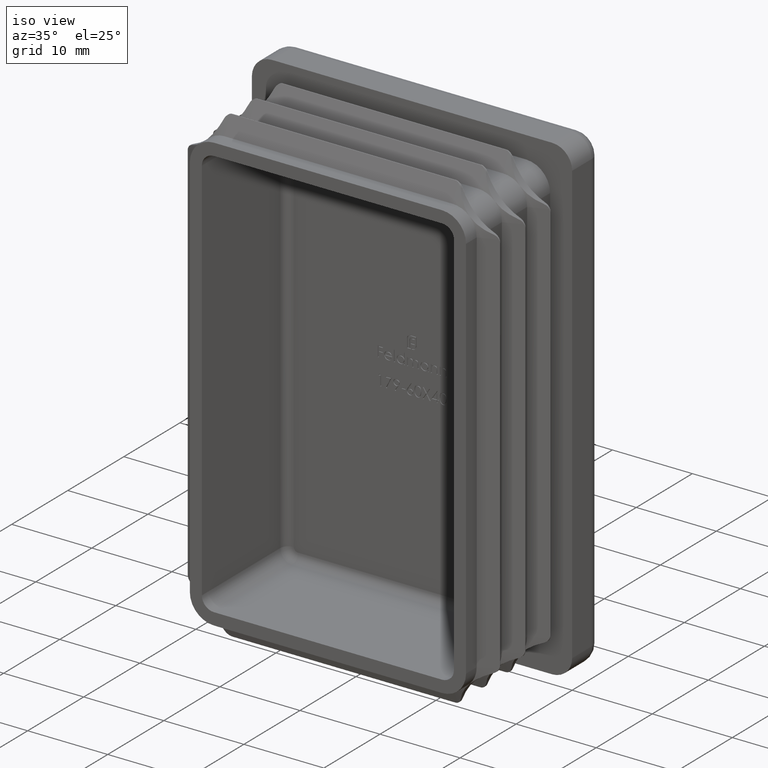
[diagram: clean part render]
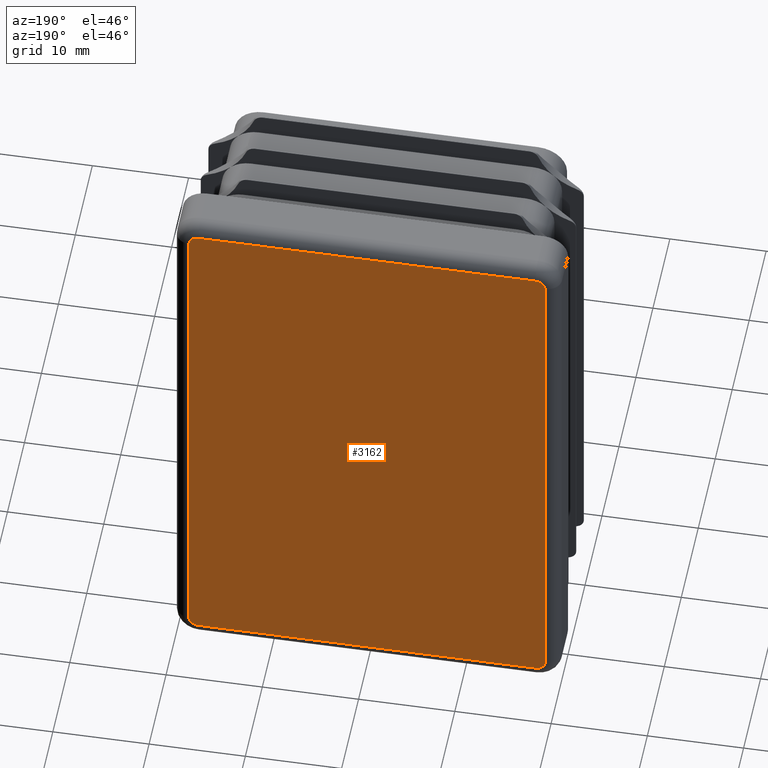
[diagram: tour spotlight — one face highlighted and labeled with its STEP entity id]
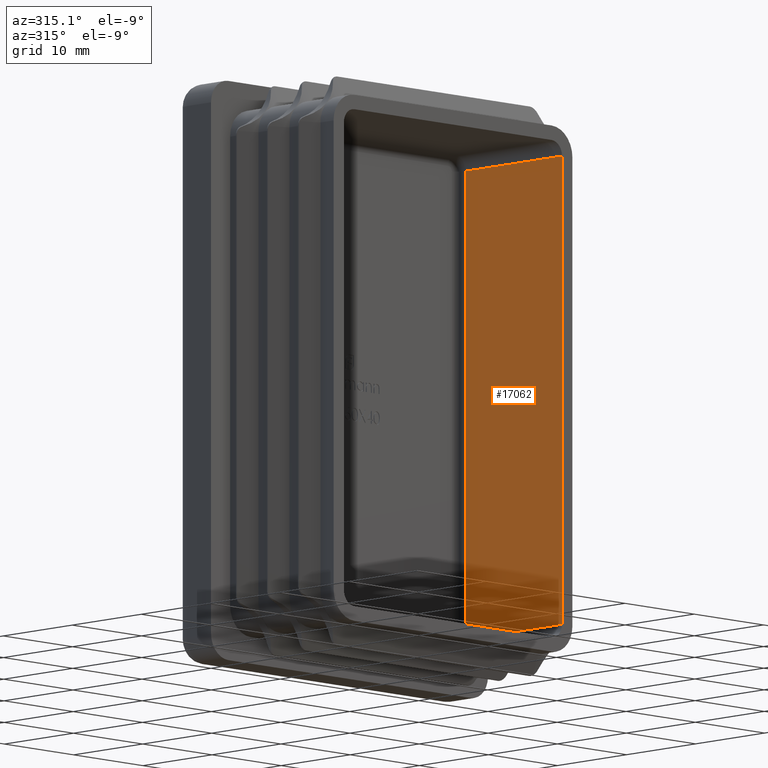
[diagram: tour spotlight — one face highlighted and labeled with its STEP entity id]
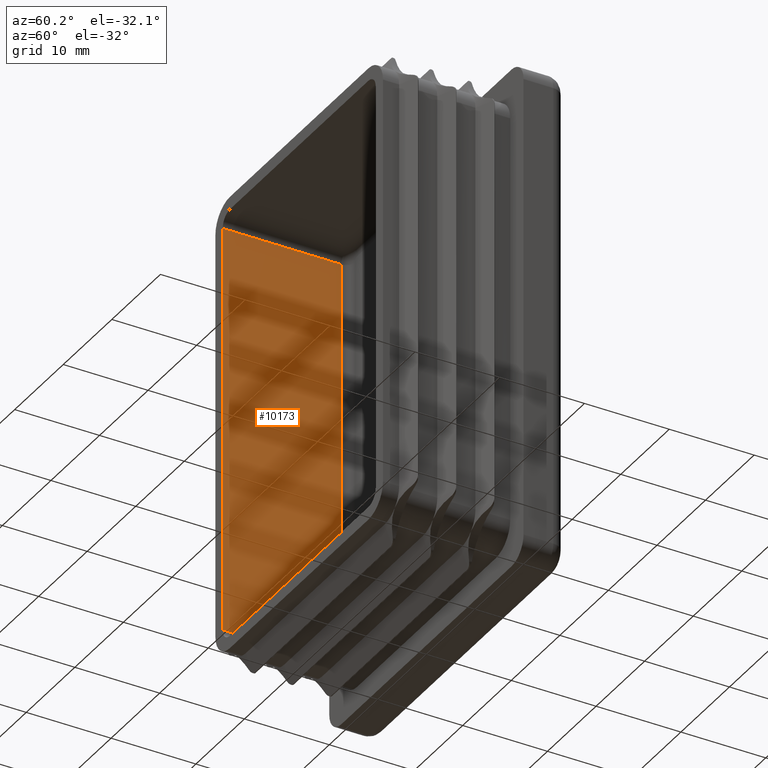
[diagram: tour spotlight — one face highlighted and labeled with its STEP entity id]
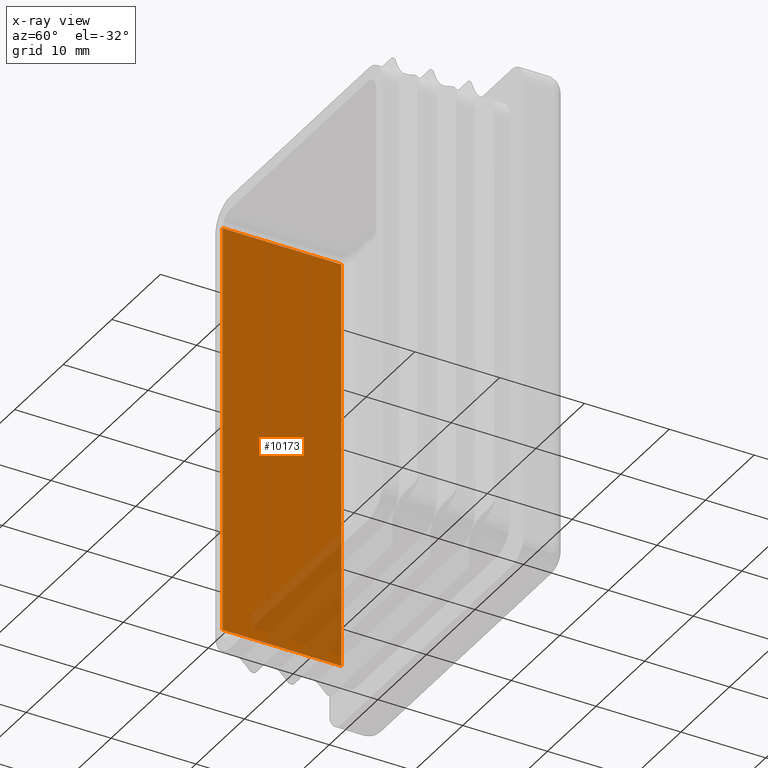
[diagram: x-ray of the same camera — body ghosted, this tour face saturated]
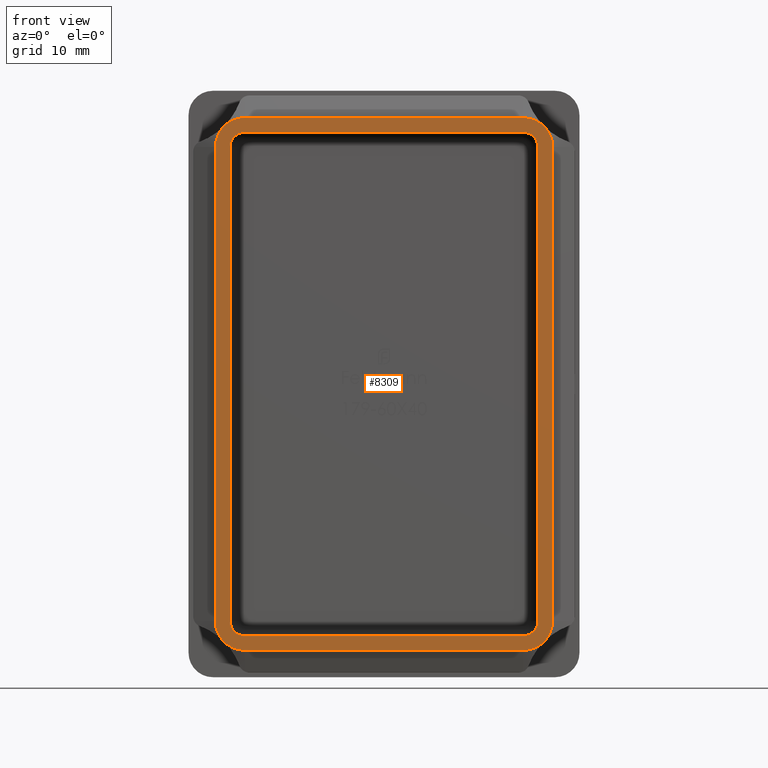
[diagram: tour spotlight — one face highlighted and labeled with its STEP entity id]
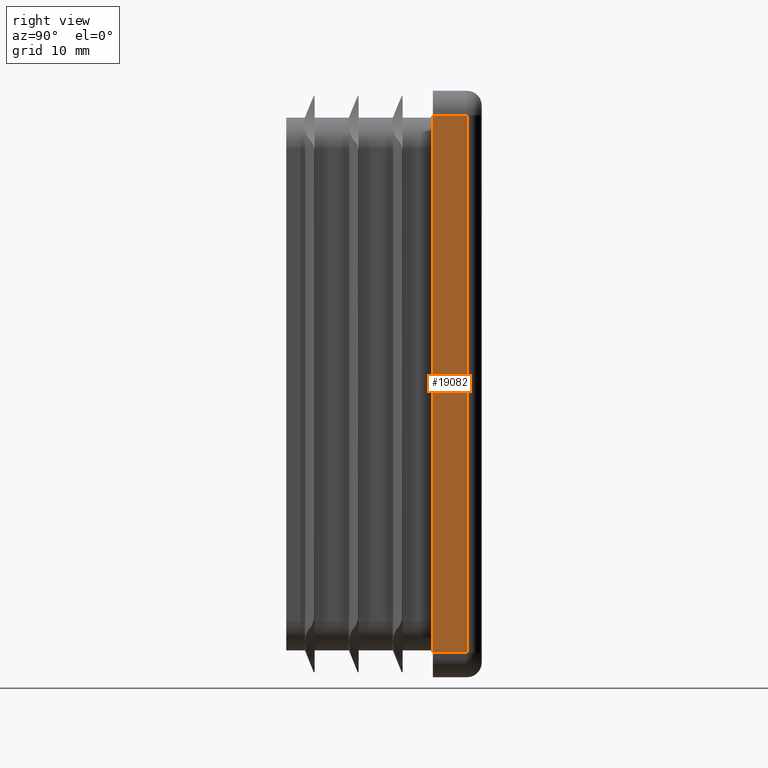
[diagram: tour spotlight — one face highlighted and labeled with its STEP entity id]
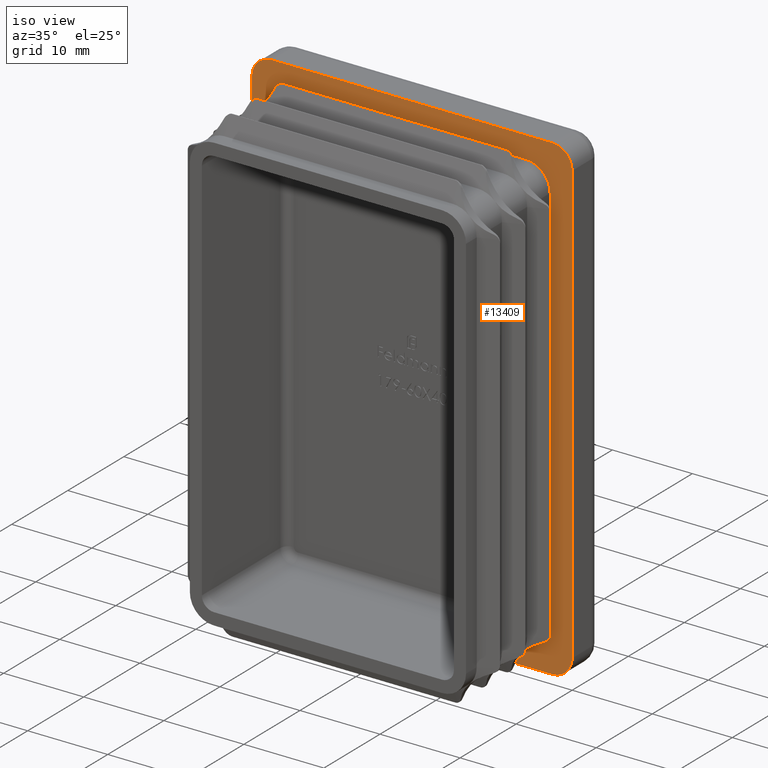
[diagram: tour spotlight — one face highlighted and labeled with its STEP entity id]
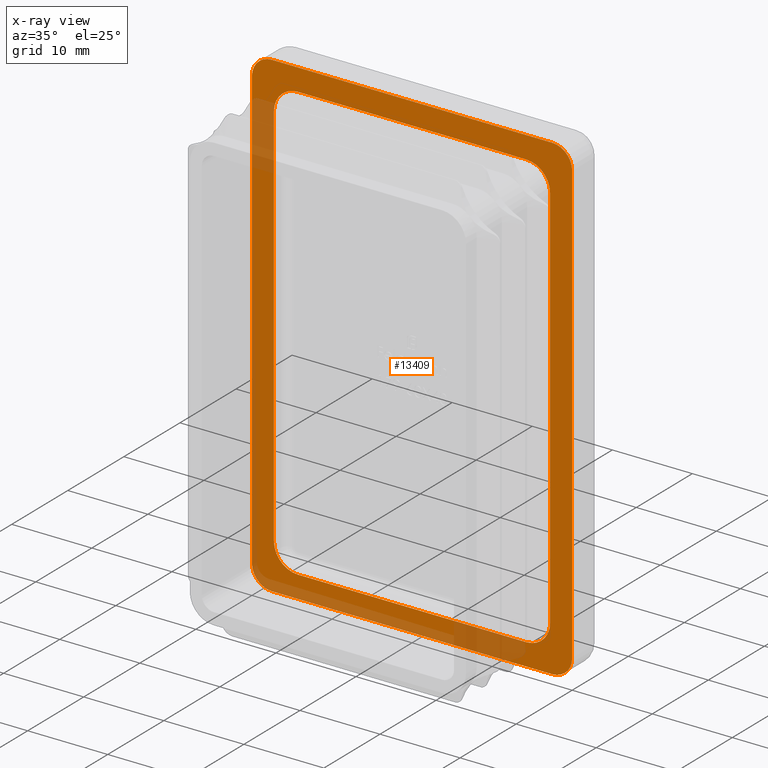
[diagram: x-ray of the same camera — body ghosted, this tour face saturated]
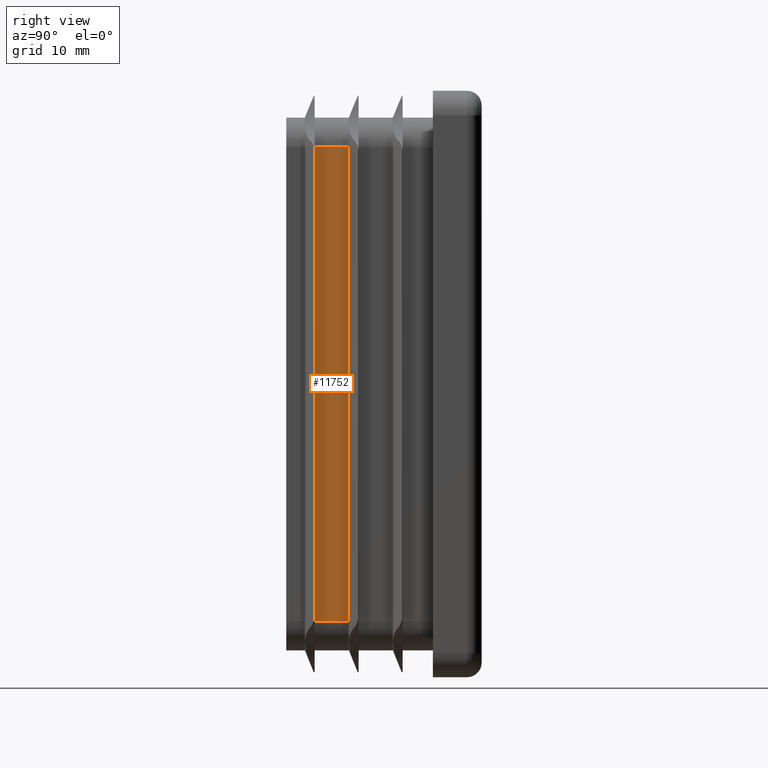
[diagram: tour spotlight — one face highlighted and labeled with its STEP entity id]
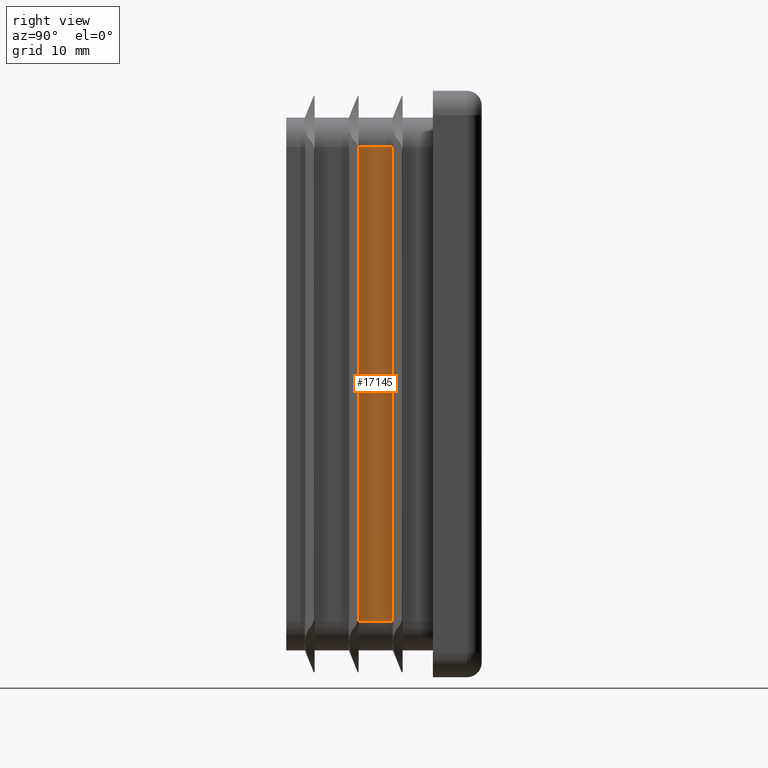
[diagram: tour spotlight — one face highlighted and labeled with its STEP entity id]
A machine part: a face-by-face anatomy tour. The part has 448 B-rep faces; the first image is the clean iso view, then the 8 largest visible faces are spotlighted one at a time (largest first), each with its STEP entity span.

Face 1 — auxiliary view, entity #3162. In plain terms, the highlighted planar face has unit normal (0, 1, 0).
Definition (entity closure, byte-faithful):
#280 = LINE ( 'NONE', #6073, #13514 ) ;
#286 = AXIS2_PLACEMENT_3D ( 'NONE', #1452, #7400, #13500 ) ;
#649 = EDGE_CURVE ( 'NONE', #13620, #8140, #1002, .T. ) ;
#1002 = LINE ( 'NONE', #11594, #13765 ) ;
#1452 = CARTESIAN_POINT ( 'NONE',  ( -17.49999999999999645, 5.000000000000000000, -27.49999999999998579 ) ) ;
#1550 = VERTEX_POINT ( 'NONE', #9179 ) ;
#2117 = DIRECTION ( 'NONE',  ( -1.000000000000000000, 0.000000000000000000, 1.734723475976807587E-16 ) ) ;
#2347 = ORIENTED_EDGE ( 'NONE', *, *, #17256, .T. ) ;
#2517 = AXIS2_PLACEMENT_3D ( 'NONE', #8215, #18630, #12753 ) ;
#2700 = EDGE_CURVE ( 'NONE', #8140, #17505, #17002, .T. ) ;
#3089 = FACE_OUTER_BOUND ( 'NONE', #14506, .T. ) ;
#3106 = CARTESIAN_POINT ( 'NONE',  ( 17.49999999999999645, 5.000000000000000000, -27.49999999999999289 ) ) ;
#3162 = ADVANCED_FACE ( 'NONE', ( #3089 ), #5227, .T. ) ;
#3391 = CIRCLE ( 'NONE', #11415, 1.000000000000000888 ) ;
#3484 = CARTESIAN_POINT ( 'NONE',  ( 18.50000000000000711, 5.000000000000000000, 27.50000000000001066 ) ) ;
#3827 = ORIENTED_EDGE ( 'NONE', *, *, #2700, .T. ) ;
#5227 = PLANE ( 'NONE',  #2517 ) ;
#5593 = ORIENTED_EDGE ( 'NONE', *, *, #8690, .T. ) ;
#5622 = CARTESIAN_POINT ( 'NONE',  ( -17.49999999999999645, 5.000000000000000000, -28.49999999999998224 ) ) ;
#5750 = DIRECTION ( 'NONE',  ( 5.782411586589357392E-17, -0.000000000000000000, 1.000000000000000000 ) ) ;
#6073 = CARTESIAN_POINT ( 'NONE',  ( 18.49999999999999645, 5.000000000000000000, -27.49999999999999289 ) ) ;
#6378 = VERTEX_POINT ( 'NONE', #13609 ) ;
#6691 = CARTESIAN_POINT ( 'NONE',  ( -17.49999999999999645, 5.000000000000000000, 28.50000000000001066 ) ) ;
#6940 = EDGE_CURVE ( 'NONE', #6378, #7213, #16894, .T. ) ;
#7213 = VERTEX_POINT ( 'NONE', #5622 ) ;
#7400 = DIRECTION ( 'NONE',  ( 0.000000000000000000, 1.000000000000000000, 0.000000000000000000 ) ) ;
#7604 = VECTOR ( 'NONE', #16769, 1000.000000000000000 ) ;
#7842 = VECTOR ( 'NONE', #2117, 1000.000000000000000 ) ;
#7945 = CARTESIAN_POINT ( 'NONE',  ( -17.49999999999999645, 5.000000000000000000, -28.49999999999998224 ) ) ;
#8140 = VERTEX_POINT ( 'NONE', #15963 ) ;
#8215 = CARTESIAN_POINT ( 'NONE',  ( 0.000000000000000000, 5.000000000000000000, 0.000000000000000000 ) ) ;
#8256 = ORIENTED_EDGE ( 'NONE', *, *, #18722, .T. ) ;
#8690 = EDGE_CURVE ( 'NONE', #1550, #6378, #3391, .T. ) ;
#8812 = CIRCLE ( 'NONE', #13625, 1.000000000000000888 ) ;
#9142 = DIRECTION ( 'NONE',  ( 0.000000000000000000, 1.000000000000000000, 0.000000000000000000 ) ) ;
#9179 = CARTESIAN_POINT ( 'NONE',  ( 18.49999999999999645, 5.000000000000000000, -27.49999999999999289 ) ) ;
#9621 = DIRECTION ( 'NONE',  ( 0.000000000000000000, 0.000000000000000000, 1.000000000000000000 ) ) ;
#9687 = DIRECTION ( 'NONE',  ( 0.000000000000000000, 1.000000000000000000, 0.000000000000000000 ) ) ;
#10797 = CARTESIAN_POINT ( 'NONE',  ( 17.50000000000000711, 5.000000000000000000, 28.50000000000000711 ) ) ;
#11111 = CARTESIAN_POINT ( 'NONE',  ( -17.49999999999999645, 5.000000000000000000, 27.50000000000001066 ) ) ;
#11415 = AXIS2_PLACEMENT_3D ( 'NONE', #3106, #9142, #16514 ) ;
#11552 = LINE ( 'NONE', #15293, #7604 ) ;
#11577 = AXIS2_PLACEMENT_3D ( 'NONE', #11111, #9687, #9621 ) ;
#11594 = CARTESIAN_POINT ( 'NONE',  ( -18.49999999999999645, 5.000000000000000000, 27.50000000000001066 ) ) ;
#11675 = CIRCLE ( 'NONE', #286, 1.000000000000000888 ) ;
#11690 = ORIENTED_EDGE ( 'NONE', *, *, #6940, .T. ) ;
#12753 = DIRECTION ( 'NONE',  ( 0.000000000000000000, -0.000000000000000000, 1.000000000000000000 ) ) ;
#13106 = ORIENTED_EDGE ( 'NONE', *, *, #649, .T. ) ;
#13500 = DIRECTION ( 'NONE',  ( 0.000000000000000000, 0.000000000000000000, 1.000000000000000000 ) ) ;
#13514 = VECTOR ( 'NONE', #13732, 1000.000000000000000 ) ;
#13609 = CARTESIAN_POINT ( 'NONE',  ( 17.49999999999999645, 5.000000000000000000, -28.49999999999999289 ) ) ;
#13620 = VERTEX_POINT ( 'NONE', #14787 ) ;
#13625 = AXIS2_PLACEMENT_3D ( 'NONE', #14480, #15781, #17260 ) ;
#13732 = DIRECTION ( 'NONE',  ( -1.734723475976807094E-16, 0.000000000000000000, -1.000000000000000000 ) ) ;
#13765 = VECTOR ( 'NONE', #5750, 1000.000000000000000 ) ;
#14480 = CARTESIAN_POINT ( 'NONE',  ( 17.50000000000000711, 5.000000000000000000, 27.50000000000001066 ) ) ;
#14506 = EDGE_LOOP ( 'NONE', ( #8256, #2347, #18413, #5593, #11690, #18846, #13106, #3827 ) ) ;
#14787 = CARTESIAN_POINT ( 'NONE',  ( -18.50000000000000000, 5.000000000000000000, -27.49999999999998579 ) ) ;
#15293 = CARTESIAN_POINT ( 'NONE',  ( 17.50000000000001066, 5.000000000000000000, 28.50000000000000711 ) ) ;
#15369 = EDGE_CURVE ( 'NONE', #7213, #13620, #11675, .T. ) ;
#15781 = DIRECTION ( 'NONE',  ( 0.000000000000000000, 1.000000000000000000, 0.000000000000000000 ) ) ;
#15963 = CARTESIAN_POINT ( 'NONE',  ( -18.49999999999999645, 5.000000000000000000, 27.50000000000001066 ) ) ;
#16004 = EDGE_CURVE ( 'NONE', #18736, #1550, #280, .T. ) ;
#16514 = DIRECTION ( 'NONE',  ( 0.000000000000000000, 0.000000000000000000, 1.000000000000000000 ) ) ;
#16769 = DIRECTION ( 'NONE',  ( 1.000000000000000000, -0.000000000000000000, 0.000000000000000000 ) ) ;
#16894 = LINE ( 'NONE', #7945, #7842 ) ;
#17002 = CIRCLE ( 'NONE', #11577, 1.000000000000000888 ) ;
#17256 = EDGE_CURVE ( 'NONE', #17412, #18736, #8812, .T. ) ;
#17260 = DIRECTION ( 'NONE',  ( 0.000000000000000000, 0.000000000000000000, 1.000000000000000000 ) ) ;
#17412 = VERTEX_POINT ( 'NONE', #10797 ) ;
#17505 = VERTEX_POINT ( 'NONE', #6691 ) ;
#18413 = ORIENTED_EDGE ( 'NONE', *, *, #16004, .T. ) ;
#18630 = DIRECTION ( 'NONE',  ( 0.000000000000000000, 1.000000000000000000, 0.000000000000000000 ) ) ;
#18722 = EDGE_CURVE ( 'NONE', #17505, #17412, #11552, .T. ) ;
#18736 = VERTEX_POINT ( 'NONE', #3484 ) ;
#18846 = ORIENTED_EDGE ( 'NONE', *, *, #15369, .T. ) ;

Face 2 — auxiliary view, entity #17062. In plain terms, the highlighted planar face has unit normal (-1, 0, -0).
Definition (entity closure, byte-faithful):
#368 = VERTEX_POINT ( 'NONE', #16264 ) ;
#818 = DIRECTION ( 'NONE',  ( -1.000000000000000000, 0.000000000000000000, -2.146049661002235845E-16 ) ) ;
#863 = CARTESIAN_POINT ( 'NONE',  ( 15.75000000000000000, -1.000000000000000888, 24.25000000000000000 ) ) ;
#1324 = AXIS2_PLACEMENT_3D ( 'NONE', #8196, #818, #18556 ) ;
#1856 = VECTOR ( 'NONE', #17009, 1000.000000000000000 ) ;
#2617 = VECTOR ( 'NONE', #17605, 1000.000000000000000 ) ;
#3534 = ORIENTED_EDGE ( 'NONE', *, *, #5080, .T. ) ;
#3591 = ORIENTED_EDGE ( 'NONE', *, *, #13493, .T. ) ;
#4913 = DIRECTION ( 'NONE',  ( -2.146049661002235845E-16, -0.000000000000000000, 1.000000000000000000 ) ) ;
#5080 = EDGE_CURVE ( 'NONE', #368, #16484, #18786, .T. ) ;
#5641 = CARTESIAN_POINT ( 'NONE',  ( 15.75000000000001066, -1.000000000000000888, -24.25000000000000000 ) ) ;
#5743 = VERTEX_POINT ( 'NONE', #7485 ) ;
#6788 = LINE ( 'NONE', #15625, #2617 ) ;
#7485 = CARTESIAN_POINT ( 'NONE',  ( 15.75000000000000000, -15.00000000000000000, 24.25000000000000000 ) ) ;
#8196 = CARTESIAN_POINT ( 'NONE',  ( 15.75000000000000000, -15.00000000000000000, 24.25000000000000000 ) ) ;
#8678 = EDGE_LOOP ( 'NONE', ( #3591, #3534, #12139, #14314 ) ) ;
#9276 = CARTESIAN_POINT ( 'NONE',  ( 15.75000000000000000, -15.00000000000000000, 24.25000000000000000 ) ) ;
#9693 = CARTESIAN_POINT ( 'NONE',  ( 15.75000000000001066, -15.00000000000000000, -24.25000000000000000 ) ) ;
#10792 = EDGE_CURVE ( 'NONE', #11316, #16484, #18744, .T. ) ;
#11316 = VERTEX_POINT ( 'NONE', #9693 ) ;
#12139 = ORIENTED_EDGE ( 'NONE', *, *, #10792, .F. ) ;
#12302 = CARTESIAN_POINT ( 'NONE',  ( 15.75000000000001066, -15.00000000000000000, -24.25000000000000000 ) ) ;
#12588 = LINE ( 'NONE', #9276, #16983 ) ;
#13493 = EDGE_CURVE ( 'NONE', #5743, #368, #6788, .T. ) ;
#14200 = DIRECTION ( 'NONE',  ( 2.146049661002235845E-16, -0.000000000000000000, -1.000000000000000000 ) ) ;
#14314 = ORIENTED_EDGE ( 'NONE', *, *, #14725, .T. ) ;
#14725 = EDGE_CURVE ( 'NONE', #11316, #5743, #12588, .T. ) ;
#15625 = CARTESIAN_POINT ( 'NONE',  ( 15.75000000000000000, -15.00000000000000000, 24.25000000000000000 ) ) ;
#15656 = PLANE ( 'NONE',  #1324 ) ;
#16264 = CARTESIAN_POINT ( 'NONE',  ( 15.75000000000000000, -1.000000000000000888, 24.25000000000000000 ) ) ;
#16484 = VERTEX_POINT ( 'NONE', #5641 ) ;
#16983 = VECTOR ( 'NONE', #4913, 1000.000000000000000 ) ;
#17009 = DIRECTION ( 'NONE',  ( -0.000000000000000000, 1.000000000000000000, -0.000000000000000000 ) ) ;
#17062 = ADVANCED_FACE ( 'NONE', ( #17363 ), #15656, .T. ) ;
#17363 = FACE_OUTER_BOUND ( 'NONE', #8678, .T. ) ;
#17605 = DIRECTION ( 'NONE',  ( -0.000000000000000000, 1.000000000000000000, -0.000000000000000000 ) ) ;
#18337 = VECTOR ( 'NONE', #14200, 1000.000000000000000 ) ;
#18556 = DIRECTION ( 'NONE',  ( -2.146049661002235845E-16, 0.000000000000000000, 1.000000000000000000 ) ) ;
#18744 = LINE ( 'NONE', #12302, #1856 ) ;
#18786 = LINE ( 'NONE', #863, #18337 ) ;

Face 3 — auxiliary view, entity #10173. An x-ray twin of the same camera follows (body ghosted, this face saturated) — the face is partly hidden behind the body. In plain terms, the highlighted planar face has unit normal (1, 0, 0).
Definition (entity closure, byte-faithful):
#80 = VECTOR ( 'NONE', #13731, 1000.000000000000000 ) ;
#2190 = VERTEX_POINT ( 'NONE', #2714 ) ;
#2205 = VECTOR ( 'NONE', #15446, 1000.000000000000000 ) ;
#2221 = CARTESIAN_POINT ( 'NONE',  ( -15.75000000000000711, -15.00000000000000000, 24.25000000000000355 ) ) ;
#2477 = CARTESIAN_POINT ( 'NONE',  ( -15.75000000000000711, -1.000000000000000888, 24.25000000000000355 ) ) ;
#2714 = CARTESIAN_POINT ( 'NONE',  ( -15.75000000000000711, -15.00000000000000000, 24.25000000000000355 ) ) ;
#3243 = AXIS2_PLACEMENT_3D ( 'NONE', #2221, #5174, #3753 ) ;
#3487 = CARTESIAN_POINT ( 'NONE',  ( -15.74999999999999289, -15.00000000000000000, -24.25000000000000000 ) ) ;
#3727 = DIRECTION ( 'NONE',  ( -0.000000000000000000, 1.000000000000000000, -0.000000000000000000 ) ) ;
#3753 = DIRECTION ( 'NONE',  ( 2.861399548002980962E-16, 0.000000000000000000, -1.000000000000000000 ) ) ;
#5101 = EDGE_CURVE ( 'NONE', #18661, #16834, #6515, .T. ) ;
#5174 = DIRECTION ( 'NONE',  ( 1.000000000000000000, 0.000000000000000000, 2.861399548002980962E-16 ) ) ;
#5727 = VERTEX_POINT ( 'NONE', #13264 ) ;
#6515 = LINE ( 'NONE', #2477, #13476 ) ;
#6627 = ORIENTED_EDGE ( 'NONE', *, *, #12958, .T. ) ;
#7691 = EDGE_CURVE ( 'NONE', #2190, #16834, #8043, .T. ) ;
#8043 = LINE ( 'NONE', #8207, #16865 ) ;
#8207 = CARTESIAN_POINT ( 'NONE',  ( -15.75000000000000711, -15.00000000000000000, 24.25000000000000355 ) ) ;
#8241 = PLANE ( 'NONE',  #3243 ) ;
#9006 = CARTESIAN_POINT ( 'NONE',  ( -15.75000000000000711, -1.000000000000000888, 24.25000000000000355 ) ) ;
#10109 = ORIENTED_EDGE ( 'NONE', *, *, #12554, .T. ) ;
#10173 = ADVANCED_FACE ( 'NONE', ( #12847 ), #8241, .T. ) ;
#11359 = DIRECTION ( 'NONE',  ( -2.861399548002980962E-16, -0.000000000000000000, 1.000000000000000000 ) ) ;
#11484 = LINE ( 'NONE', #15559, #2205 ) ;
#12554 = EDGE_CURVE ( 'NONE', #2190, #5727, #11484, .T. ) ;
#12847 = FACE_OUTER_BOUND ( 'NONE', #15713, .T. ) ;
#12958 = EDGE_CURVE ( 'NONE', #5727, #18661, #17249, .T. ) ;
#13264 = CARTESIAN_POINT ( 'NONE',  ( -15.74999999999999289, -15.00000000000000000, -24.25000000000000000 ) ) ;
#13476 = VECTOR ( 'NONE', #11359, 1000.000000000000000 ) ;
#13731 = DIRECTION ( 'NONE',  ( -0.000000000000000000, 1.000000000000000000, -0.000000000000000000 ) ) ;
#14044 = ORIENTED_EDGE ( 'NONE', *, *, #5101, .T. ) ;
#15446 = DIRECTION ( 'NONE',  ( 2.861399548002980962E-16, -0.000000000000000000, -1.000000000000000000 ) ) ;
#15559 = CARTESIAN_POINT ( 'NONE',  ( -15.75000000000000711, -15.00000000000000000, 24.25000000000000355 ) ) ;
#15713 = EDGE_LOOP ( 'NONE', ( #6627, #14044, #17992, #10109 ) ) ;
#16834 = VERTEX_POINT ( 'NONE', #9006 ) ;
#16865 = VECTOR ( 'NONE', #3727, 1000.000000000000000 ) ;
#17249 = LINE ( 'NONE', #3487, #80 ) ;
#17992 = ORIENTED_EDGE ( 'NONE', *, *, #7691, .F. ) ;
#18047 = CARTESIAN_POINT ( 'NONE',  ( -15.74999999999999289, -1.000000000000000888, -24.25000000000000000 ) ) ;
#18661 = VERTEX_POINT ( 'NONE', #18047 ) ;

Face 4 — front view, entity #8309. In plain terms, the highlighted planar face has unit normal (0, -1, 0).
Definition (entity closure, byte-faithful):
#99 = EDGE_CURVE ( 'NONE', #11619, #692, #2175, .T. ) ;
#189 = ORIENTED_EDGE ( 'NONE', *, *, #15195, .F. ) ;
#573 = DIRECTION ( 'NONE',  ( 0.000000000000000000, 0.000000000000000000, 1.000000000000000000 ) ) ;
#672 = CARTESIAN_POINT ( 'NONE',  ( -14.25000000000000533, -15.00000000000000000, 25.75000000000000355 ) ) ;
#692 = VERTEX_POINT ( 'NONE', #2717 ) ;
#975 = LINE ( 'NONE', #12010, #4685 ) ;
#1079 = CARTESIAN_POINT ( 'NONE',  ( 14.24999999999999822, -15.00000000000000000, 27.25000000000000355 ) ) ;
#1161 = DIRECTION ( 'NONE',  ( 0.000000000000000000, -1.000000000000000000, 0.000000000000000000 ) ) ;
#1875 = AXIS2_PLACEMENT_3D ( 'NONE', #6756, #17013, #2183 ) ;
#2137 = CARTESIAN_POINT ( 'NONE',  ( -14.24999999999999467, -15.00000000000000000, -27.24999999999999645 ) ) ;
#2175 = LINE ( 'NONE', #13660, #2623 ) ;
#2183 = DIRECTION ( 'NONE',  ( 0.000000000000000000, 0.000000000000000000, 1.000000000000000000 ) ) ;
#2190 = VERTEX_POINT ( 'NONE', #2714 ) ;
#2205 = VECTOR ( 'NONE', #15446, 1000.000000000000000 ) ;
#2403 = EDGE_LOOP ( 'NONE', ( #8116, #18142, #7522, #7171, #18291, #189, #13554, #6675 ) ) ;
#2404 = VERTEX_POINT ( 'NONE', #12568 ) ;
#2417 = ORIENTED_EDGE ( 'NONE', *, *, #16878, .T. ) ;
#2459 = ORIENTED_EDGE ( 'NONE', *, *, #4982, .T. ) ;
#2464 = DIRECTION ( 'NONE',  ( 0.000000000000000000, 0.000000000000000000, 1.000000000000000000 ) ) ;
#2623 = VECTOR ( 'NONE', #16632, 1000.000000000000000 ) ;
#2714 = CARTESIAN_POINT ( 'NONE',  ( -15.75000000000000711, -15.00000000000000000, 24.25000000000000355 ) ) ;
#2717 = CARTESIAN_POINT ( 'NONE',  ( -17.24999999999999289, -15.00000000000000000, -24.25000000000000000 ) ) ;
#2739 = DIRECTION ( 'NONE',  ( 0.000000000000000000, -1.000000000000000000, 0.000000000000000000 ) ) ;
#2749 = CARTESIAN_POINT ( 'NONE',  ( 17.24999999999999645, -15.00000000000000000, 24.25000000000000000 ) ) ;
#2796 = AXIS2_PLACEMENT_3D ( 'NONE', #6923, #1161, #2464 ) ;
#3118 = VERTEX_POINT ( 'NONE', #2137 ) ;
#3573 = CIRCLE ( 'NONE', #4223, 1.499999999999997780 ) ;
#3761 = DIRECTION ( 'NONE',  ( 0.000000000000000000, -1.000000000000000000, 0.000000000000000000 ) ) ;
#3884 = CARTESIAN_POINT ( 'NONE',  ( -14.24999999999999467, -15.00000000000000000, -24.25000000000000000 ) ) ;
#4024 = VERTEX_POINT ( 'NONE', #17608 ) ;
#4101 = EDGE_CURVE ( 'NONE', #16139, #6190, #975, .T. ) ;
#4173 = CIRCLE ( 'NONE', #5908, 2.999999999999995559 ) ;
#4223 = AXIS2_PLACEMENT_3D ( 'NONE', #14782, #4458, #14847 ) ;
#4458 = DIRECTION ( 'NONE',  ( 0.000000000000000000, -1.000000000000000000, 0.000000000000000000 ) ) ;
#4665 = VERTEX_POINT ( 'NONE', #12789 ) ;
#4685 = VECTOR ( 'NONE', #7777, 1000.000000000000000 ) ;
#4697 = AXIS2_PLACEMENT_3D ( 'NONE', #18087, #10709, #10649 ) ;
#4913 = DIRECTION ( 'NONE',  ( -2.146049661002235845E-16, -0.000000000000000000, 1.000000000000000000 ) ) ;
#4982 = EDGE_CURVE ( 'NONE', #692, #3118, #4173, .T. ) ;
#5727 = VERTEX_POINT ( 'NONE', #13264 ) ;
#5743 = VERTEX_POINT ( 'NONE', #7485 ) ;
#5787 = ORIENTED_EDGE ( 'NONE', *, *, #11187, .T. ) ;
#5908 = AXIS2_PLACEMENT_3D ( 'NONE', #3884, #3761, #14083 ) ;
#6029 = AXIS2_PLACEMENT_3D ( 'NONE', #16312, #6067, #14964 ) ;
#6067 = DIRECTION ( 'NONE',  ( 0.000000000000000000, -1.000000000000000000, 0.000000000000000000 ) ) ;
#6077 = EDGE_CURVE ( 'NONE', #5727, #16139, #7676, .T. ) ;
#6101 = LINE ( 'NONE', #672, #17437 ) ;
#6190 = VERTEX_POINT ( 'NONE', #18907 ) ;
#6450 = DIRECTION ( 'NONE',  ( 1.000000000000000000, 0.000000000000000000, -2.434699615406044232E-16 ) ) ;
#6545 = CARTESIAN_POINT ( 'NONE',  ( -14.25000000000000533, -15.00000000000000000, 27.25000000000000355 ) ) ;
#6675 = ORIENTED_EDGE ( 'NONE', *, *, #6077, .F. ) ;
#6756 = CARTESIAN_POINT ( 'NONE',  ( -14.25000000000000533, -15.00000000000000000, 24.25000000000000355 ) ) ;
#6923 = CARTESIAN_POINT ( 'NONE',  ( -14.24999999999999467, -15.00000000000000000, -24.25000000000000000 ) ) ;
#7171 = ORIENTED_EDGE ( 'NONE', *, *, #10240, .F. ) ;
#7485 = CARTESIAN_POINT ( 'NONE',  ( 15.75000000000000000, -15.00000000000000000, 24.25000000000000000 ) ) ;
#7522 = ORIENTED_EDGE ( 'NONE', *, *, #13420, .F. ) ;
#7550 = ORIENTED_EDGE ( 'NONE', *, *, #12136, .T. ) ;
#7592 = AXIS2_PLACEMENT_3D ( 'NONE', #16234, #8852, #8793 ) ;
#7676 = CIRCLE ( 'NONE', #2796, 1.499999999999997780 ) ;
#7777 = DIRECTION ( 'NONE',  ( 1.000000000000000000, 0.000000000000000000, -1.217349807703022116E-16 ) ) ;
#7784 = VERTEX_POINT ( 'NONE', #18880 ) ;
#7879 = VECTOR ( 'NONE', #16924, 1000.000000000000000 ) ;
#8116 = ORIENTED_EDGE ( 'NONE', *, *, #12554, .F. ) ;
#8309 = ADVANCED_FACE ( 'NONE', ( #15679, #14524 ), #16676, .T. ) ;
#8451 = ORIENTED_EDGE ( 'NONE', *, *, #99, .T. ) ;
#8590 = DIRECTION ( 'NONE',  ( -2.861399548002980962E-16, -0.000000000000000000, 1.000000000000000000 ) ) ;
#8793 = DIRECTION ( 'NONE',  ( 0.000000000000000000, 0.000000000000000000, 1.000000000000000000 ) ) ;
#8833 = CIRCLE ( 'NONE', #6029, 3.000000000000002665 ) ;
#8852 = DIRECTION ( 'NONE',  ( 0.000000000000000000, -1.000000000000000000, 0.000000000000000000 ) ) ;
#9276 = CARTESIAN_POINT ( 'NONE',  ( 15.75000000000000000, -15.00000000000000000, 24.25000000000000000 ) ) ;
#9584 = CARTESIAN_POINT ( 'NONE',  ( -14.24999999999999467, -15.00000000000000000, -25.75000000000000000 ) ) ;
#9693 = CARTESIAN_POINT ( 'NONE',  ( 15.75000000000001066, -15.00000000000000000, -24.25000000000000000 ) ) ;
#10229 = AXIS2_PLACEMENT_3D ( 'NONE', #15966, #2739, #16165 ) ;
#10240 = EDGE_CURVE ( 'NONE', #5743, #4665, #3573, .T. ) ;
#10635 = EDGE_LOOP ( 'NONE', ( #2417, #18375, #7550, #18587, #15203, #8451, #2459, #5787 ) ) ;
#10649 = DIRECTION ( 'NONE',  ( 0.000000000000000000, -0.000000000000000000, -1.000000000000000000 ) ) ;
#10655 = EDGE_CURVE ( 'NONE', #18139, #2190, #11348, .T. ) ;
#10709 = DIRECTION ( 'NONE',  ( 0.000000000000000000, -1.000000000000000000, 0.000000000000000000 ) ) ;
#10812 = CARTESIAN_POINT ( 'NONE',  ( 14.24999999999999822, -15.00000000000000000, 24.25000000000000355 ) ) ;
#11006 = VECTOR ( 'NONE', #8590, 1000.000000000000000 ) ;
#11109 = DIRECTION ( 'NONE',  ( -1.000000000000000000, -0.000000000000000000, -0.000000000000000000 ) ) ;
#11187 = EDGE_CURVE ( 'NONE', #3118, #4024, #18900, .T. ) ;
#11207 = CARTESIAN_POINT ( 'NONE',  ( -14.25000000000000533, -15.00000000000000000, 25.75000000000000355 ) ) ;
#11257 = CIRCLE ( 'NONE', #13444, 2.999999999999999112 ) ;
#11316 = VERTEX_POINT ( 'NONE', #9693 ) ;
#11348 = CIRCLE ( 'NONE', #7592, 1.499999999999997780 ) ;
#11484 = LINE ( 'NONE', #15559, #2205 ) ;
#11619 = VERTEX_POINT ( 'NONE', #16972 ) ;
#12010 = CARTESIAN_POINT ( 'NONE',  ( -14.24999999999999467, -15.00000000000000000, -25.75000000000000000 ) ) ;
#12136 = EDGE_CURVE ( 'NONE', #2404, #16248, #11257, .T. ) ;
#12554 = EDGE_CURVE ( 'NONE', #2190, #5727, #11484, .T. ) ;
#12568 = CARTESIAN_POINT ( 'NONE',  ( 17.24999999999999645, -15.00000000000000000, 24.25000000000000000 ) ) ;
#12588 = LINE ( 'NONE', #9276, #16983 ) ;
#12601 = CARTESIAN_POINT ( 'NONE',  ( -14.24999999999999467, -15.00000000000000000, -27.24999999999999645 ) ) ;
#12619 = LINE ( 'NONE', #2749, #11006 ) ;
#12789 = CARTESIAN_POINT ( 'NONE',  ( 14.24999999999999822, -15.00000000000000000, 25.75000000000000355 ) ) ;
#12819 = CIRCLE ( 'NONE', #10229, 1.500000000000001332 ) ;
#13081 = EDGE_CURVE ( 'NONE', #7784, #2404, #12619, .T. ) ;
#13198 = LINE ( 'NONE', #6545, #7879 ) ;
#13264 = CARTESIAN_POINT ( 'NONE',  ( -15.74999999999999289, -15.00000000000000000, -24.25000000000000000 ) ) ;
#13420 = EDGE_CURVE ( 'NONE', #4665, #18139, #6101, .T. ) ;
#13444 = AXIS2_PLACEMENT_3D ( 'NONE', #10812, #15290, #573 ) ;
#13554 = ORIENTED_EDGE ( 'NONE', *, *, #4101, .F. ) ;
#13660 = CARTESIAN_POINT ( 'NONE',  ( -17.25000000000000711, -15.00000000000000000, 24.25000000000000355 ) ) ;
#13757 = CARTESIAN_POINT ( 'NONE',  ( -14.25000000000000533, -15.00000000000000000, 27.25000000000000355 ) ) ;
#14083 = DIRECTION ( 'NONE',  ( 0.000000000000000000, 0.000000000000000000, 1.000000000000000000 ) ) ;
#14524 = FACE_BOUND ( 'NONE', #2403, .T. ) ;
#14725 = EDGE_CURVE ( 'NONE', #11316, #5743, #12588, .T. ) ;
#14753 = VECTOR ( 'NONE', #6450, 1000.000000000000000 ) ;
#14782 = CARTESIAN_POINT ( 'NONE',  ( 14.24999999999999822, -15.00000000000000000, 24.25000000000000355 ) ) ;
#14847 = DIRECTION ( 'NONE',  ( 0.000000000000000000, 0.000000000000000000, 1.000000000000000000 ) ) ;
#14964 = DIRECTION ( 'NONE',  ( 0.000000000000000000, 0.000000000000000000, -1.000000000000000000 ) ) ;
#15031 = CIRCLE ( 'NONE', #1875, 2.999999999999999112 ) ;
#15195 = EDGE_CURVE ( 'NONE', #6190, #11316, #12819, .T. ) ;
#15203 = ORIENTED_EDGE ( 'NONE', *, *, #18763, .T. ) ;
#15290 = DIRECTION ( 'NONE',  ( 0.000000000000000000, -1.000000000000000000, 0.000000000000000000 ) ) ;
#15446 = DIRECTION ( 'NONE',  ( 2.861399548002980962E-16, -0.000000000000000000, -1.000000000000000000 ) ) ;
#15459 = VERTEX_POINT ( 'NONE', #13757 ) ;
#15559 = CARTESIAN_POINT ( 'NONE',  ( -15.75000000000000711, -15.00000000000000000, 24.25000000000000355 ) ) ;
#15679 = FACE_OUTER_BOUND ( 'NONE', #10635, .T. ) ;
#15966 = CARTESIAN_POINT ( 'NONE',  ( 14.25000000000001243, -15.00000000000000000, -24.25000000000000000 ) ) ;
#16139 = VERTEX_POINT ( 'NONE', #9584 ) ;
#16165 = DIRECTION ( 'NONE',  ( 0.000000000000000000, 0.000000000000000000, -1.000000000000000000 ) ) ;
#16234 = CARTESIAN_POINT ( 'NONE',  ( -14.25000000000000533, -15.00000000000000000, 24.25000000000000355 ) ) ;
#16248 = VERTEX_POINT ( 'NONE', #1079 ) ;
#16312 = CARTESIAN_POINT ( 'NONE',  ( 14.25000000000001243, -15.00000000000000000, -24.25000000000000000 ) ) ;
#16632 = DIRECTION ( 'NONE',  ( 2.861399548002980962E-16, -0.000000000000000000, -1.000000000000000000 ) ) ;
#16676 = PLANE ( 'NONE',  #4697 ) ;
#16878 = EDGE_CURVE ( 'NONE', #4024, #7784, #8833, .T. ) ;
#16924 = DIRECTION ( 'NONE',  ( -1.000000000000000000, -0.000000000000000000, -0.000000000000000000 ) ) ;
#16972 = CARTESIAN_POINT ( 'NONE',  ( -17.25000000000000711, -15.00000000000000000, 24.25000000000000355 ) ) ;
#16983 = VECTOR ( 'NONE', #4913, 1000.000000000000000 ) ;
#17013 = DIRECTION ( 'NONE',  ( 0.000000000000000000, -1.000000000000000000, 0.000000000000000000 ) ) ;
#17437 = VECTOR ( 'NONE', #11109, 1000.000000000000000 ) ;
#17608 = CARTESIAN_POINT ( 'NONE',  ( 14.25000000000001243, -15.00000000000000000, -27.25000000000000355 ) ) ;
#17959 = EDGE_CURVE ( 'NONE', #16248, #15459, #13198, .T. ) ;
#18087 = CARTESIAN_POINT ( 'NONE',  ( 14.25000000000001243, -15.00000000000000000, -24.25000000000000000 ) ) ;
#18139 = VERTEX_POINT ( 'NONE', #11207 ) ;
#18142 = ORIENTED_EDGE ( 'NONE', *, *, #10655, .F. ) ;
#18291 = ORIENTED_EDGE ( 'NONE', *, *, #14725, .F. ) ;
#18375 = ORIENTED_EDGE ( 'NONE', *, *, #13081, .T. ) ;
#18587 = ORIENTED_EDGE ( 'NONE', *, *, #17959, .T. ) ;
#18763 = EDGE_CURVE ( 'NONE', #15459, #11619, #15031, .T. ) ;
#18880 = CARTESIAN_POINT ( 'NONE',  ( 17.25000000000001066, -15.00000000000000000, -24.25000000000000000 ) ) ;
#18900 = LINE ( 'NONE', #12601, #14753 ) ;
#18907 = CARTESIAN_POINT ( 'NONE',  ( 14.25000000000001243, -15.00000000000000000, -25.75000000000000355 ) ) ;

Face 5 — right view, entity #19082. In plain terms, the highlighted planar face has unit normal (-1, 0, 0).
Definition (entity closure, byte-faithful):
#299 = LINE ( 'NONE', #12608, #12376 ) ;
#308 = VERTEX_POINT ( 'NONE', #17480 ) ;
#559 = DIRECTION ( 'NONE',  ( -1.000000000000000000, 0.000000000000000000, 1.734723475976807094E-16 ) ) ;
#561 = VECTOR ( 'NONE', #13901, 1000.000000000000000 ) ;
#3329 = LINE ( 'NONE', #7930, #561 ) ;
#4499 = EDGE_CURVE ( 'NONE', #13802, #12107, #13723, .T. ) ;
#4820 = PLANE ( 'NONE',  #8925 ) ;
#5653 = CARTESIAN_POINT ( 'NONE',  ( 19.99999999999999645, 0.000000000000000000, -29.99999999999999289 ) ) ;
#6060 = VECTOR ( 'NONE', #6312, 1000.000000000000000 ) ;
#6312 = DIRECTION ( 'NONE',  ( -1.734723475976807094E-16, -0.000000000000000000, -1.000000000000000000 ) ) ;
#6710 = CARTESIAN_POINT ( 'NONE',  ( 20.00000000000000711, 0.000000000000000000, 27.50000000000001066 ) ) ;
#7170 = VECTOR ( 'NONE', #16195, 1000.000000000000000 ) ;
#7895 = CARTESIAN_POINT ( 'NONE',  ( 19.99999999999999645, 0.000000000000000000, -27.49999999999999289 ) ) ;
#7930 = CARTESIAN_POINT ( 'NONE',  ( 20.00000000000000711, 3.500000000000000000, 27.50000000000001066 ) ) ;
#8925 = AXIS2_PLACEMENT_3D ( 'NONE', #10872, #559, #13773 ) ;
#9419 = ORIENTED_EDGE ( 'NONE', *, *, #13344, .T. ) ;
#10872 = CARTESIAN_POINT ( 'NONE',  ( 19.99999999999999645, 5.000000000000000000, -29.99999999999999289 ) ) ;
#11136 = LINE ( 'NONE', #14503, #7170 ) ;
#11339 = ORIENTED_EDGE ( 'NONE', *, *, #15170, .T. ) ;
#12107 = VERTEX_POINT ( 'NONE', #7895 ) ;
#12376 = VECTOR ( 'NONE', #14151, 1000.000000000000000 ) ;
#12608 = CARTESIAN_POINT ( 'NONE',  ( 20.00000000000000711, 5.000000000000000000, 27.50000000000001066 ) ) ;
#13344 = EDGE_CURVE ( 'NONE', #14175, #308, #3329, .T. ) ;
#13723 = LINE ( 'NONE', #5653, #6060 ) ;
#13773 = DIRECTION ( 'NONE',  ( 1.734723475976807094E-16, 0.000000000000000000, 1.000000000000000000 ) ) ;
#13802 = VERTEX_POINT ( 'NONE', #6710 ) ;
#13901 = DIRECTION ( 'NONE',  ( 1.734723475976807094E-16, -0.000000000000000000, 1.000000000000000000 ) ) ;
#14151 = DIRECTION ( 'NONE',  ( 0.000000000000000000, -1.000000000000000000, 0.000000000000000000 ) ) ;
#14175 = VERTEX_POINT ( 'NONE', #17448 ) ;
#14503 = CARTESIAN_POINT ( 'NONE',  ( 19.99999999999999645, 5.000000000000000000, -27.49999999999999289 ) ) ;
#15170 = EDGE_CURVE ( 'NONE', #308, #13802, #299, .T. ) ;
#15711 = ORIENTED_EDGE ( 'NONE', *, *, #16777, .T. ) ;
#16195 = DIRECTION ( 'NONE',  ( -0.000000000000000000, 1.000000000000000000, -0.000000000000000000 ) ) ;
#16777 = EDGE_CURVE ( 'NONE', #12107, #14175, #11136, .T. ) ;
#16943 = EDGE_LOOP ( 'NONE', ( #15711, #9419, #11339, #17877 ) ) ;
#17448 = CARTESIAN_POINT ( 'NONE',  ( 19.99999999999999645, 3.500000000000000000, -27.49999999999999289 ) ) ;
#17480 = CARTESIAN_POINT ( 'NONE',  ( 20.00000000000000711, 3.500000000000000000, 27.50000000000001066 ) ) ;
#17804 = FACE_OUTER_BOUND ( 'NONE', #16943, .T. ) ;
#17877 = ORIENTED_EDGE ( 'NONE', *, *, #4499, .T. ) ;
#19082 = ADVANCED_FACE ( 'NONE', ( #17804 ), #4820, .F. ) ;

Face 6 — iso view, entity #13409. An x-ray twin of the same camera follows (body ghosted, this face saturated) — the face is partly hidden behind the body. In plain terms, the highlighted planar face has unit normal (0, 1, 0).
Definition (entity closure, byte-faithful):
#302 = DIRECTION ( 'NONE',  ( 0.000000000000000000, 0.000000000000000000, 1.000000000000000000 ) ) ;
#315 = CARTESIAN_POINT ( 'NONE',  ( -14.24999999999999467, 0.000000000000000000, -27.24999999999999645 ) ) ;
#379 = DIRECTION ( 'NONE',  ( -0.000000000000000000, -1.000000000000000000, -0.000000000000000000 ) ) ;
#387 = EDGE_CURVE ( 'NONE', #12008, #3856, #4705, .T. ) ;
#395 = ORIENTED_EDGE ( 'NONE', *, *, #4821, .T. ) ;
#469 = CARTESIAN_POINT ( 'NONE',  ( -17.49999999999999645, 0.000000000000000000, 27.50000000000001066 ) ) ;
#890 = DIRECTION ( 'NONE',  ( -1.000000000000000000, -0.000000000000000000, -0.000000000000000000 ) ) ;
#893 = EDGE_CURVE ( 'NONE', #7267, #12107, #10338, .T. ) ;
#952 = CARTESIAN_POINT ( 'NONE',  ( 17.25000000000001066, 0.000000000000000000, -24.25000000000000000 ) ) ;
#1376 = CARTESIAN_POINT ( 'NONE',  ( 17.50000000000001066, 0.000000000000000000, 30.00000000000001066 ) ) ;
#1387 = VERTEX_POINT ( 'NONE', #10270 ) ;
#1446 = CIRCLE ( 'NONE', #13083, 2.499999999999998668 ) ;
#1583 = AXIS2_PLACEMENT_3D ( 'NONE', #13952, #10592, #4615 ) ;
#2030 = ORIENTED_EDGE ( 'NONE', *, *, #12050, .F. ) ;
#2052 = CARTESIAN_POINT ( 'NONE',  ( -19.99999999999999645, 0.000000000000000000, -29.99999999999998579 ) ) ;
#2056 = EDGE_CURVE ( 'NONE', #15897, #12820, #7039, .T. ) ;
#2269 = AXIS2_PLACEMENT_3D ( 'NONE', #7789, #18145, #9540 ) ;
#2541 = EDGE_CURVE ( 'NONE', #7021, #7708, #18170, .T. ) ;
#2608 = CARTESIAN_POINT ( 'NONE',  ( -19.99999999999999645, 0.000000000000000000, -29.99999999999998579 ) ) ;
#2626 = AXIS2_PLACEMENT_3D ( 'NONE', #17903, #5382, #14462 ) ;
#2795 = ORIENTED_EDGE ( 'NONE', *, *, #4499, .F. ) ;
#3280 = ORIENTED_EDGE ( 'NONE', *, *, #11667, .F. ) ;
#3402 = VERTEX_POINT ( 'NONE', #14956 ) ;
#3524 = DIRECTION ( 'NONE',  ( 1.000000000000000000, 0.000000000000000000, -2.434699615406044232E-16 ) ) ;
#3707 = CARTESIAN_POINT ( 'NONE',  ( -14.24999999999999467, -0.000000000000000000, -27.24999999999999645 ) ) ;
#3740 = AXIS2_PLACEMENT_3D ( 'NONE', #18342, #12593, #9618 ) ;
#3856 = VERTEX_POINT ( 'NONE', #6932 ) ;
#4087 = EDGE_CURVE ( 'NONE', #8434, #3402, #1446, .T. ) ;
#4499 = EDGE_CURVE ( 'NONE', #13802, #12107, #13723, .T. ) ;
#4520 = LINE ( 'NONE', #18112, #11956 ) ;
#4615 = DIRECTION ( 'NONE',  ( -4.163336342344339393E-15, 0.000000000000000000, 1.000000000000000000 ) ) ;
#4705 = CIRCLE ( 'NONE', #13057, 2.999999999999999112 ) ;
#4821 = EDGE_CURVE ( 'NONE', #13802, #5238, #17407, .T. ) ;
#5046 = CARTESIAN_POINT ( 'NONE',  ( 14.24999999999999822, 0.000000000000000000, 24.25000000000000355 ) ) ;
#5238 = VERTEX_POINT ( 'NONE', #1376 ) ;
#5382 = DIRECTION ( 'NONE',  ( 0.000000000000000000, -1.000000000000000000, 0.000000000000000000 ) ) ;
#5475 = VECTOR ( 'NONE', #6259, 1000.000000000000000 ) ;
#5653 = CARTESIAN_POINT ( 'NONE',  ( 19.99999999999999645, 0.000000000000000000, -29.99999999999999289 ) ) ;
#5696 = ORIENTED_EDGE ( 'NONE', *, *, #4087, .T. ) ;
#5845 = ORIENTED_EDGE ( 'NONE', *, *, #18742, .F. ) ;
#5970 = CARTESIAN_POINT ( 'NONE',  ( -14.25000000000000533, 0.000000000000000000, 24.25000000000000355 ) ) ;
#6060 = VECTOR ( 'NONE', #6312, 1000.000000000000000 ) ;
#6106 = ORIENTED_EDGE ( 'NONE', *, *, #387, .F. ) ;
#6259 = DIRECTION ( 'NONE',  ( -2.861399548002980962E-16, -0.000000000000000000, 1.000000000000000000 ) ) ;
#6312 = DIRECTION ( 'NONE',  ( -1.734723475976807094E-16, -0.000000000000000000, -1.000000000000000000 ) ) ;
#6704 = CARTESIAN_POINT ( 'NONE',  ( -14.25000000000000533, 0.000000000000000000, 27.25000000000000355 ) ) ;
#6710 = CARTESIAN_POINT ( 'NONE',  ( 20.00000000000000711, 0.000000000000000000, 27.50000000000001066 ) ) ;
#6873 = LINE ( 'NONE', #15079, #5475 ) ;
#6879 = ORIENTED_EDGE ( 'NONE', *, *, #13443, .F. ) ;
#6932 = CARTESIAN_POINT ( 'NONE',  ( -17.25000000000000711, 0.000000000000000000, 24.25000000000000355 ) ) ;
#7021 = VERTEX_POINT ( 'NONE', #10882 ) ;
#7039 = CIRCLE ( 'NONE', #2269, 2.499999999999998668 ) ;
#7267 = VERTEX_POINT ( 'NONE', #8686 ) ;
#7471 = VECTOR ( 'NONE', #7926, 1000.000000000000000 ) ;
#7514 = DIRECTION ( 'NONE',  ( 0.000000000000000000, 0.000000000000000000, 1.000000000000000000 ) ) ;
#7686 = CARTESIAN_POINT ( 'NONE',  ( -17.49999999999999645, 0.000000000000000000, -29.99999999999998579 ) ) ;
#7708 = VERTEX_POINT ( 'NONE', #952 ) ;
#7789 = CARTESIAN_POINT ( 'NONE',  ( -17.49999999999999645, 0.000000000000000000, -27.49999999999998579 ) ) ;
#7895 = CARTESIAN_POINT ( 'NONE',  ( 19.99999999999999645, 0.000000000000000000, -27.49999999999999289 ) ) ;
#7914 = DIRECTION ( 'NONE',  ( 0.000000000000000000, 0.000000000000000000, 1.000000000000000000 ) ) ;
#7926 = DIRECTION ( 'NONE',  ( 1.000000000000000000, 0.000000000000000000, 0.000000000000000000 ) ) ;
#7950 = EDGE_CURVE ( 'NONE', #7708, #9854, #6873, .T. ) ;
#8020 = DIRECTION ( 'NONE',  ( 2.861399548002980962E-16, -0.000000000000000000, -1.000000000000000000 ) ) ;
#8434 = VERTEX_POINT ( 'NONE', #9433 ) ;
#8686 = CARTESIAN_POINT ( 'NONE',  ( 17.49999999999999645, 0.000000000000000000, -29.99999999999999289 ) ) ;
#9007 = CIRCLE ( 'NONE', #13791, 2.999999999999999112 ) ;
#9433 = CARTESIAN_POINT ( 'NONE',  ( -17.49999999999999645, 0.000000000000000000, 30.00000000000001066 ) ) ;
#9540 = DIRECTION ( 'NONE',  ( 0.000000000000000000, 0.000000000000000000, 1.000000000000000000 ) ) ;
#9554 = ORIENTED_EDGE ( 'NONE', *, *, #16142, .F. ) ;
#9618 = DIRECTION ( 'NONE',  ( 0.000000000000000000, -0.000000000000000000, 1.000000000000000000 ) ) ;
#9854 = VERTEX_POINT ( 'NONE', #18514 ) ;
#10040 = LINE ( 'NONE', #6704, #16051 ) ;
#10270 = CARTESIAN_POINT ( 'NONE',  ( 14.24999999999999822, 0.000000000000000000, 27.25000000000000355 ) ) ;
#10338 = CIRCLE ( 'NONE', #15314, 2.499999999999998668 ) ;
#10508 = DIRECTION ( 'NONE',  ( 0.000000000000000000, -1.000000000000000000, 0.000000000000000000 ) ) ;
#10592 = DIRECTION ( 'NONE',  ( -0.000000000000000000, -1.000000000000000000, -0.000000000000000000 ) ) ;
#10819 = DIRECTION ( 'NONE',  ( 0.000000000000000000, 0.000000000000000000, 1.000000000000000000 ) ) ;
#10882 = CARTESIAN_POINT ( 'NONE',  ( 14.25000000000001243, 0.000000000000000000, -27.25000000000000355 ) ) ;
#11140 = DIRECTION ( 'NONE',  ( 0.000000000000000000, -1.000000000000000000, 0.000000000000000000 ) ) ;
#11154 = EDGE_CURVE ( 'NONE', #13771, #7021, #15908, .T. ) ;
#11215 = VECTOR ( 'NONE', #17175, 1000.000000000000000 ) ;
#11253 = VERTEX_POINT ( 'NONE', #18730 ) ;
#11667 = EDGE_CURVE ( 'NONE', #11253, #13771, #13821, .T. ) ;
#11956 = VECTOR ( 'NONE', #8020, 1000.000000000000000 ) ;
#12008 = VERTEX_POINT ( 'NONE', #16496 ) ;
#12050 = EDGE_CURVE ( 'NONE', #3856, #11253, #4520, .T. ) ;
#12107 = VERTEX_POINT ( 'NONE', #7895 ) ;
#12143 = CARTESIAN_POINT ( 'NONE',  ( -19.99999999999999289, 0.000000000000000000, 30.00000000000001066 ) ) ;
#12359 = LINE ( 'NONE', #12143, #7471 ) ;
#12577 = DIRECTION ( 'NONE',  ( 0.000000000000000000, 0.000000000000000000, 1.000000000000000000 ) ) ;
#12593 = DIRECTION ( 'NONE',  ( 0.000000000000000000, 1.000000000000000000, 0.000000000000000000 ) ) ;
#12611 = ORIENTED_EDGE ( 'NONE', *, *, #2056, .T. ) ;
#12810 = AXIS2_PLACEMENT_3D ( 'NONE', #15430, #11140, #12577 ) ;
#12820 = VERTEX_POINT ( 'NONE', #7686 ) ;
#13025 = CARTESIAN_POINT ( 'NONE',  ( -19.99999999999999645, 0.000000000000000000, -27.49999999999998579 ) ) ;
#13057 = AXIS2_PLACEMENT_3D ( 'NONE', #5970, #10508, #7514 ) ;
#13083 = AXIS2_PLACEMENT_3D ( 'NONE', #469, #15173, #7914 ) ;
#13120 = DIRECTION ( 'NONE',  ( -1.000000000000000000, -0.000000000000000000, 1.734723475976807341E-16 ) ) ;
#13313 = FACE_OUTER_BOUND ( 'NONE', #14721, .T. ) ;
#13409 = ADVANCED_FACE ( 'NONE', ( #13313, #16309 ), #15566, .F. ) ;
#13443 = EDGE_CURVE ( 'NONE', #15897, #3402, #18383, .T. ) ;
#13723 = LINE ( 'NONE', #5653, #6060 ) ;
#13771 = VERTEX_POINT ( 'NONE', #315 ) ;
#13791 = AXIS2_PLACEMENT_3D ( 'NONE', #5046, #16567, #302 ) ;
#13802 = VERTEX_POINT ( 'NONE', #6710 ) ;
#13821 = CIRCLE ( 'NONE', #12810, 2.999999999999995559 ) ;
#13952 = CARTESIAN_POINT ( 'NONE',  ( 17.50000000000000711, 0.000000000000000000, 27.50000000000001066 ) ) ;
#14043 = VECTOR ( 'NONE', #3524, 1000.000000000000000 ) ;
#14462 = DIRECTION ( 'NONE',  ( 0.000000000000000000, 0.000000000000000000, -1.000000000000000000 ) ) ;
#14721 = EDGE_LOOP ( 'NONE', ( #395, #18186, #5696, #6879, #12611, #18212, #18236, #2795 ) ) ;
#14918 = VECTOR ( 'NONE', #13120, 1000.000000000000000 ) ;
#14956 = CARTESIAN_POINT ( 'NONE',  ( -19.99999999999999289, 0.000000000000000000, 27.50000000000001066 ) ) ;
#15079 = CARTESIAN_POINT ( 'NONE',  ( 17.24999999999999645, 0.000000000000000000, 24.25000000000000000 ) ) ;
#15173 = DIRECTION ( 'NONE',  ( -0.000000000000000000, -1.000000000000000000, -0.000000000000000000 ) ) ;
#15245 = EDGE_CURVE ( 'NONE', #7267, #12820, #19060, .T. ) ;
#15314 = AXIS2_PLACEMENT_3D ( 'NONE', #18260, #379, #10819 ) ;
#15430 = CARTESIAN_POINT ( 'NONE',  ( -14.24999999999999467, -0.000000000000000000, -24.25000000000000000 ) ) ;
#15453 = EDGE_CURVE ( 'NONE', #8434, #5238, #12359, .T. ) ;
#15566 = PLANE ( 'NONE',  #3740 ) ;
#15673 = ORIENTED_EDGE ( 'NONE', *, *, #11154, .F. ) ;
#15817 = ORIENTED_EDGE ( 'NONE', *, *, #7950, .F. ) ;
#15897 = VERTEX_POINT ( 'NONE', #13025 ) ;
#15908 = LINE ( 'NONE', #3707, #14043 ) ;
#16051 = VECTOR ( 'NONE', #890, 1000.000000000000000 ) ;
#16142 = EDGE_CURVE ( 'NONE', #1387, #12008, #10040, .T. ) ;
#16281 = ORIENTED_EDGE ( 'NONE', *, *, #2541, .F. ) ;
#16309 = FACE_BOUND ( 'NONE', #17466, .T. ) ;
#16496 = CARTESIAN_POINT ( 'NONE',  ( -14.25000000000000533, 0.000000000000000000, 27.25000000000000355 ) ) ;
#16567 = DIRECTION ( 'NONE',  ( 0.000000000000000000, -1.000000000000000000, 0.000000000000000000 ) ) ;
#17175 = DIRECTION ( 'NONE',  ( 5.782411586589357392E-17, 0.000000000000000000, 1.000000000000000000 ) ) ;
#17407 = CIRCLE ( 'NONE', #1583, 2.499999999999998668 ) ;
#17466 = EDGE_LOOP ( 'NONE', ( #9554, #5845, #15817, #16281, #15673, #3280, #2030, #6106 ) ) ;
#17903 = CARTESIAN_POINT ( 'NONE',  ( 14.25000000000001243, 0.000000000000000000, -24.25000000000000000 ) ) ;
#18112 = CARTESIAN_POINT ( 'NONE',  ( -17.25000000000000711, 0.000000000000000000, 24.25000000000000355 ) ) ;
#18145 = DIRECTION ( 'NONE',  ( -0.000000000000000000, -1.000000000000000000, -0.000000000000000000 ) ) ;
#18170 = CIRCLE ( 'NONE', #2626, 3.000000000000002665 ) ;
#18186 = ORIENTED_EDGE ( 'NONE', *, *, #15453, .F. ) ;
#18212 = ORIENTED_EDGE ( 'NONE', *, *, #15245, .F. ) ;
#18236 = ORIENTED_EDGE ( 'NONE', *, *, #893, .T. ) ;
#18260 = CARTESIAN_POINT ( 'NONE',  ( 17.49999999999999645, 0.000000000000000000, -27.49999999999999289 ) ) ;
#18342 = CARTESIAN_POINT ( 'NONE',  ( 0.000000000000000000, 0.000000000000000000, 0.000000000000000000 ) ) ;
#18383 = LINE ( 'NONE', #2052, #11215 ) ;
#18514 = CARTESIAN_POINT ( 'NONE',  ( 17.24999999999999645, 0.000000000000000000, 24.25000000000000000 ) ) ;
#18730 = CARTESIAN_POINT ( 'NONE',  ( -17.24999999999999289, 0.000000000000000000, -24.25000000000000000 ) ) ;
#18742 = EDGE_CURVE ( 'NONE', #9854, #1387, #9007, .T. ) ;
#19060 = LINE ( 'NONE', #2608, #14918 ) ;

Face 7 — right view, entity #11752. In plain terms, the highlighted planar face has unit normal (-1, 0, -0).
Definition (entity closure, byte-faithful):
#56 = ORIENTED_EDGE ( 'NONE', *, *, #1739, .T. ) ;
#60 = ORIENTED_EDGE ( 'NONE', *, *, #5671, .T. ) ;
#783 = CARTESIAN_POINT ( 'NONE',  ( 17.25000000000001066, -8.600000000000017408, -24.25000000000000000 ) ) ;
#1493 = VERTEX_POINT ( 'NONE', #3393 ) ;
#1732 = CARTESIAN_POINT ( 'NONE',  ( 17.25000000000000355, -12.10000000000000142, 0.000000000000000000 ) ) ;
#1739 = EDGE_CURVE ( 'NONE', #12678, #6852, #17709, .T. ) ;
#2509 = VECTOR ( 'NONE', #14633, 1000.000000000000000 ) ;
#2573 = DIRECTION ( 'NONE',  ( -2.861399548002980962E-16, 0.000000000000000000, 1.000000000000000000 ) ) ;
#2788 = VECTOR ( 'NONE', #17452, 1000.000000000000000 ) ;
#3120 = EDGE_CURVE ( 'NONE', #17694, #14511, #17918, .T. ) ;
#3338 = VERTEX_POINT ( 'NONE', #10032 ) ;
#3393 = CARTESIAN_POINT ( 'NONE',  ( 17.25000000000001066, -12.10000000000000142, -24.25000000000000000 ) ) ;
#3587 = CARTESIAN_POINT ( 'NONE',  ( 17.25000000000008527, -12.10000000000000142, 24.24999999999998224 ) ) ;
#3775 = ORIENTED_EDGE ( 'NONE', *, *, #3120, .F. ) ;
#3864 = PLANE ( 'NONE',  #7098 ) ;
#4607 = EDGE_CURVE ( 'NONE', #3338, #17694, #5132, .T. ) ;
#4859 = EDGE_LOOP ( 'NONE', ( #15930, #60, #3775, #17759, #12600, #56 ) ) ;
#5132 = LINE ( 'NONE', #15773, #8152 ) ;
#5421 = VECTOR ( 'NONE', #17072, 1000.000000000000000 ) ;
#5671 = EDGE_CURVE ( 'NONE', #1493, #14511, #8829, .T. ) ;
#6289 = EDGE_CURVE ( 'NONE', #6852, #1493, #10883, .T. ) ;
#6852 = VERTEX_POINT ( 'NONE', #1732 ) ;
#7010 = CARTESIAN_POINT ( 'NONE',  ( 17.24999999999999645, -15.00000000000000000, 24.25000000000000000 ) ) ;
#7098 = AXIS2_PLACEMENT_3D ( 'NONE', #14371, #12758, #2573 ) ;
#8152 = VECTOR ( 'NONE', #16024, 1000.000000000000000 ) ;
#8251 = FACE_OUTER_BOUND ( 'NONE', #4859, .T. ) ;
#8829 = LINE ( 'NONE', #18952, #2788 ) ;
#9031 = LINE ( 'NONE', #7010, #13907 ) ;
#10032 = CARTESIAN_POINT ( 'NONE',  ( 17.24999999999999645, -8.600000000000017408, 24.25000000000000000 ) ) ;
#10883 = LINE ( 'NONE', #13283, #2509 ) ;
#10938 = EDGE_CURVE ( 'NONE', #12678, #3338, #9031, .T. ) ;
#11752 = ADVANCED_FACE ( 'NONE', ( #8251 ), #3864, .F. ) ;
#12600 = ORIENTED_EDGE ( 'NONE', *, *, #10938, .F. ) ;
#12678 = VERTEX_POINT ( 'NONE', #18960 ) ;
#12758 = DIRECTION ( 'NONE',  ( -1.000000000000000000, 0.000000000000000000, -2.861399548002980962E-16 ) ) ;
#13242 = CARTESIAN_POINT ( 'NONE',  ( 17.25000000000000355, -8.600000000000017408, 0.000000000000000000 ) ) ;
#13283 = CARTESIAN_POINT ( 'NONE',  ( 17.25000000000009237, -12.10000000000000142, 0.000000000000000000 ) ) ;
#13907 = VECTOR ( 'NONE', #17503, 1000.000000000000000 ) ;
#13988 = VECTOR ( 'NONE', #18328, 1000.000000000000000 ) ;
#14371 = CARTESIAN_POINT ( 'NONE',  ( 17.24999999999999645, -15.00000000000000000, 24.25000000000000000 ) ) ;
#14511 = VERTEX_POINT ( 'NONE', #783 ) ;
#14633 = DIRECTION ( 'NONE',  ( 3.576749435003726573E-16, 0.000000000000000000, -1.000000000000000000 ) ) ;
#15773 = CARTESIAN_POINT ( 'NONE',  ( 17.25000000000003908, -8.599999999999999645, 24.24999999999998224 ) ) ;
#15930 = ORIENTED_EDGE ( 'NONE', *, *, #6289, .T. ) ;
#16024 = DIRECTION ( 'NONE',  ( 3.576749435003726573E-16, 0.000000000000000000, -1.000000000000000000 ) ) ;
#16859 = CARTESIAN_POINT ( 'NONE',  ( 17.25000000000004619, -8.599999999999999645, 0.000000000000000000 ) ) ;
#17072 = DIRECTION ( 'NONE',  ( 3.576749435003726573E-16, 0.000000000000000000, -1.000000000000000000 ) ) ;
#17452 = DIRECTION ( 'NONE',  ( -0.000000000000000000, 1.000000000000000000, -0.000000000000000000 ) ) ;
#17503 = DIRECTION ( 'NONE',  ( -0.000000000000000000, 1.000000000000000000, -0.000000000000000000 ) ) ;
#17694 = VERTEX_POINT ( 'NONE', #13242 ) ;
#17709 = LINE ( 'NONE', #3587, #5421 ) ;
#17759 = ORIENTED_EDGE ( 'NONE', *, *, #4607, .F. ) ;
#17918 = LINE ( 'NONE', #16859, #13988 ) ;
#18328 = DIRECTION ( 'NONE',  ( 3.576749435003726573E-16, 0.000000000000000000, -1.000000000000000000 ) ) ;
#18952 = CARTESIAN_POINT ( 'NONE',  ( 17.25000000000001066, -15.00000000000000000, -24.25000000000000000 ) ) ;
#18960 = CARTESIAN_POINT ( 'NONE',  ( 17.24999999999999645, -12.10000000000000142, 24.25000000000000000 ) ) ;

Face 8 — right view, entity #17145. In plain terms, the highlighted planar face has unit normal (-1, 0, -0).
Definition (entity closure, byte-faithful):
#362 = VECTOR ( 'NONE', #14689, 1000.000000000000000 ) ;
#1080 = VECTOR ( 'NONE', #9882, 1000.000000000000000 ) ;
#1434 = CARTESIAN_POINT ( 'NONE',  ( 17.25000000000005329, -7.600000000000000533, -24.24999999999996803 ) ) ;
#3416 = DIRECTION ( 'NONE',  ( 3.576749435003726573E-16, 0.000000000000000000, -1.000000000000000000 ) ) ;
#4045 = VERTEX_POINT ( 'NONE', #15051 ) ;
#4815 = LINE ( 'NONE', #12832, #15500 ) ;
#5027 = CARTESIAN_POINT ( 'NONE',  ( 17.24999999999998934, -4.100000000000000533, 24.24999999999998224 ) ) ;
#5364 = DIRECTION ( 'NONE',  ( 3.576749435003726573E-16, 0.000000000000000000, -1.000000000000000000 ) ) ;
#5387 = DIRECTION ( 'NONE',  ( -0.000000000000000000, 1.000000000000000000, -0.000000000000000000 ) ) ;
#5546 = EDGE_LOOP ( 'NONE', ( #17943, #13651, #6560, #14814, #17606, #5558 ) ) ;
#5558 = ORIENTED_EDGE ( 'NONE', *, *, #8137, .T. ) ;
#5586 = CARTESIAN_POINT ( 'NONE',  ( 17.24999999999999645, -15.00000000000000000, 24.25000000000000000 ) ) ;
#5744 = CARTESIAN_POINT ( 'NONE',  ( 17.24999999999999645, -15.00000000000000000, 24.25000000000000000 ) ) ;
#6251 = VECTOR ( 'NONE', #5387, 1000.000000000000000 ) ;
#6430 = LINE ( 'NONE', #8375, #1080 ) ;
#6491 = FACE_OUTER_BOUND ( 'NONE', #5546, .T. ) ;
#6560 = ORIENTED_EDGE ( 'NONE', *, *, #6814, .F. ) ;
#6814 = EDGE_CURVE ( 'NONE', #9190, #4045, #10629, .T. ) ;
#6918 = LINE ( 'NONE', #12786, #6251 ) ;
#7096 = EDGE_CURVE ( 'NONE', #12316, #13633, #4815, .T. ) ;
#7860 = VECTOR ( 'NONE', #15332, 1000.000000000000000 ) ;
#8137 = EDGE_CURVE ( 'NONE', #17308, #12316, #6430, .T. ) ;
#8375 = CARTESIAN_POINT ( 'NONE',  ( 17.25000000000003908, -7.600000000000000533, 24.24999999999998224 ) ) ;
#8532 = DIRECTION ( 'NONE',  ( -2.861399548002980962E-16, 0.000000000000000000, 1.000000000000000000 ) ) ;
#8629 = VERTEX_POINT ( 'NONE', #11547 ) ;
#9190 = VERTEX_POINT ( 'NONE', #13398 ) ;
#9882 = DIRECTION ( 'NONE',  ( 3.576749435003726573E-16, 0.000000000000000000, -1.000000000000000000 ) ) ;
#9961 = DIRECTION ( 'NONE',  ( -1.000000000000000000, 0.000000000000000000, -2.861399548002980962E-16 ) ) ;
#10629 = LINE ( 'NONE', #12307, #11554 ) ;
#11547 = CARTESIAN_POINT ( 'NONE',  ( 17.24999999999999645, -4.099999999999997868, 24.25000000000000000 ) ) ;
#11554 = VECTOR ( 'NONE', #3416, 1000.000000000000000 ) ;
#11864 = EDGE_CURVE ( 'NONE', #17308, #8629, #17501, .T. ) ;
#12307 = CARTESIAN_POINT ( 'NONE',  ( 17.24999999999999645, -4.100000000000000533, 0.000000000000000000 ) ) ;
#12316 = VERTEX_POINT ( 'NONE', #17429 ) ;
#12786 = CARTESIAN_POINT ( 'NONE',  ( 17.25000000000001066, -15.00000000000000000, -24.25000000000000000 ) ) ;
#12832 = CARTESIAN_POINT ( 'NONE',  ( 17.25000000000004619, -7.600000000000000533, 0.000000000000000000 ) ) ;
#13321 = CARTESIAN_POINT ( 'NONE',  ( 17.24999999999999645, -7.600000000000000533, 24.25000000000000000 ) ) ;
#13398 = CARTESIAN_POINT ( 'NONE',  ( 17.25000000000000355, -4.100000000000000533, 0.000000000000000000 ) ) ;
#13633 = VERTEX_POINT ( 'NONE', #1434 ) ;
#13651 = ORIENTED_EDGE ( 'NONE', *, *, #17601, .T. ) ;
#14689 = DIRECTION ( 'NONE',  ( -0.000000000000000000, 1.000000000000000000, -0.000000000000000000 ) ) ;
#14809 = LINE ( 'NONE', #5027, #7860 ) ;
#14814 = ORIENTED_EDGE ( 'NONE', *, *, #19136, .F. ) ;
#15051 = CARTESIAN_POINT ( 'NONE',  ( 17.25000000000001066, -4.099999999999998757, -24.25000000000000000 ) ) ;
#15332 = DIRECTION ( 'NONE',  ( 3.576749435003726573E-16, 0.000000000000000000, -1.000000000000000000 ) ) ;
#15500 = VECTOR ( 'NONE', #5364, 1000.000000000000000 ) ;
#16220 = AXIS2_PLACEMENT_3D ( 'NONE', #5586, #9961, #8532 ) ;
#17145 = ADVANCED_FACE ( 'NONE', ( #6491 ), #18805, .F. ) ;
#17308 = VERTEX_POINT ( 'NONE', #13321 ) ;
#17429 = CARTESIAN_POINT ( 'NONE',  ( 17.25000000000000355, -7.600000000000000533, 0.000000000000000000 ) ) ;
#17501 = LINE ( 'NONE', #5744, #362 ) ;
#17601 = EDGE_CURVE ( 'NONE', #13633, #4045, #6918, .T. ) ;
#17606 = ORIENTED_EDGE ( 'NONE', *, *, #11864, .F. ) ;
#17943 = ORIENTED_EDGE ( 'NONE', *, *, #7096, .T. ) ;
#18805 = PLANE ( 'NONE',  #16220 ) ;
#19136 = EDGE_CURVE ( 'NONE', #8629, #9190, #14809, .T. ) ;